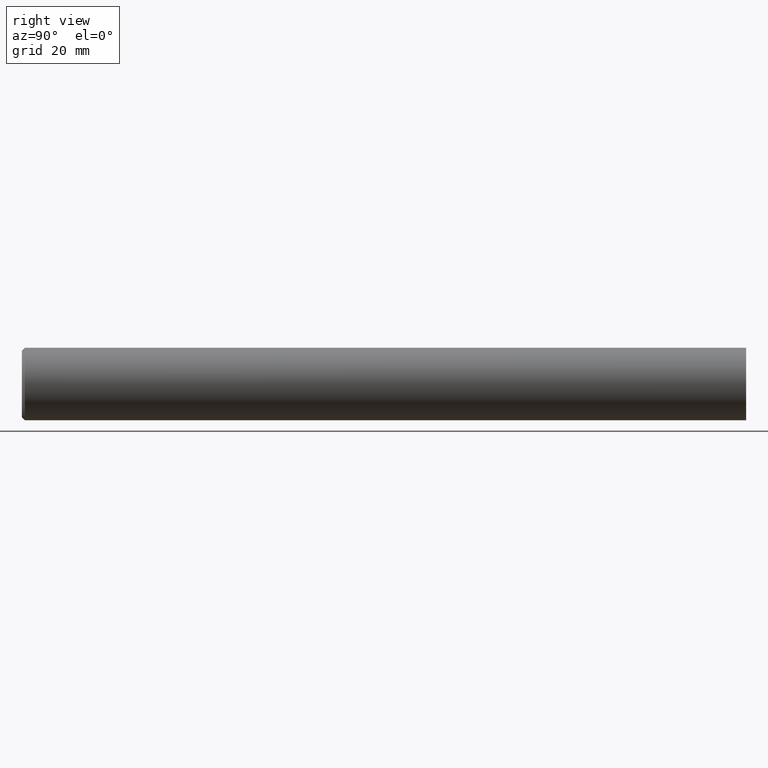
[diagram: clean part render]
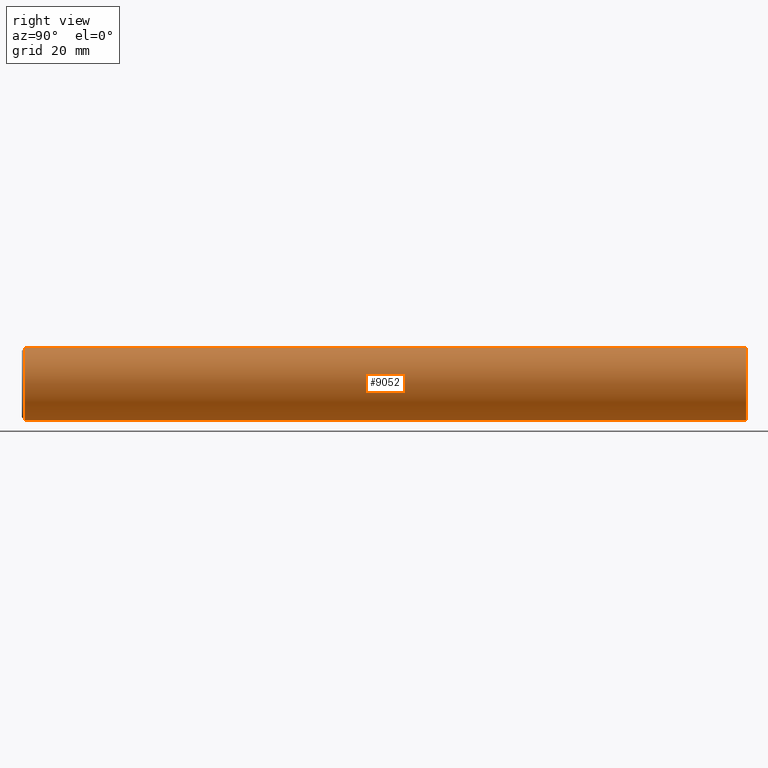
[diagram: same view with one face highlighted and labeled with its STEP entity id]
A machine part, right view. The second image highlights one B-rep face of the part: STEP entity #9052.
In plain terms, the highlighted cylindrical surface (bore or boss wall) has radius 6 mm, axis along (-0, 1, -0).
Its self-contained STEP definition (entity closure, byte-faithful):
#293 = DIRECTION ( 'NONE',  ( -0.0000000000000000000, 1.000000000000000000, -0.0000000000000000000 ) ) ;
#915 = DIRECTION ( 'NONE',  ( 0.0000000000000000000, 0.0000000000000000000, 1.000000000000000000 ) ) ;
#1142 = EDGE_CURVE ( 'NONE', #7634, #7634, #7859, .T. ) ;
#2980 = CARTESIAN_POINT ( 'NONE',  ( 9.233836865571039000E-015, -59.50000000000001400, 6.000000000000000000 ) ) ;
#3349 = CYLINDRICAL_SURFACE ( 'NONE', #8079, 6.000000000000000000 ) ;
#3433 = VERTEX_POINT ( 'NONE', #2980 ) ;
#3753 = ORIENTED_EDGE ( 'NONE', *, *, #1142, .F. ) ;
#3966 = EDGE_LOOP ( 'NONE', ( #3753 ) ) ;
#5050 = DIRECTION ( 'NONE',  ( 0.0000000000000000000, 0.0000000000000000000, 1.000000000000000000 ) ) ;
#5370 = DIRECTION ( 'NONE',  ( -0.0000000000000000000, 1.000000000000000000, -0.0000000000000000000 ) ) ;
#5473 = AXIS2_PLACEMENT_3D ( 'NONE', #8073, #5370, #9113 ) ;
#6101 = FACE_OUTER_BOUND ( 'NONE', #3966, .T. ) ;
#6337 = DIRECTION ( 'NONE',  ( -0.0000000000000000000, 1.000000000000000000, -0.0000000000000000000 ) ) ;
#6921 = EDGE_CURVE ( 'NONE', #3433, #3433, #11066, .T. ) ;
#7145 = ORIENTED_EDGE ( 'NONE', *, *, #6921, .T. ) ;
#7634 = VERTEX_POINT ( 'NONE', #10470 ) ;
#7784 = AXIS2_PLACEMENT_3D ( 'NONE', #9529, #293, #5050 ) ;
#7859 = CIRCLE ( 'NONE', #7784, 6.000000000000000000 ) ;
#8073 = CARTESIAN_POINT ( 'NONE',  ( 9.233836865571039000E-015, -59.50000000000001400, 0.0000000000000000000 ) ) ;
#8079 = AXIS2_PLACEMENT_3D ( 'NONE', #11041, #6337, #915 ) ;
#9010 = FACE_OUTER_BOUND ( 'NONE', #11835, .T. ) ;
#9052 = ADVANCED_FACE ( 'NONE', ( #9010, #6101 ), #3349, .T. ) ;
#9113 = DIRECTION ( 'NONE',  ( 0.0000000000000000000, 0.0000000000000000000, 1.000000000000000000 ) ) ;
#9529 = CARTESIAN_POINT ( 'NONE',  ( 9.233836865571039000E-015, 60.00000000000000000, 0.0000000000000000000 ) ) ;
#10470 = CARTESIAN_POINT ( 'NONE',  ( 9.233836865571039000E-015, 60.00000000000000000, 6.000000000000000000 ) ) ;
#11041 = CARTESIAN_POINT ( 'NONE',  ( 9.233836865571039000E-015, 60.00000000000000000, 0.0000000000000000000 ) ) ;
#11066 = CIRCLE ( 'NONE', #5473, 6.000000000000000000 ) ;
#11835 = EDGE_LOOP ( 'NONE', ( #7145 ) ) ;